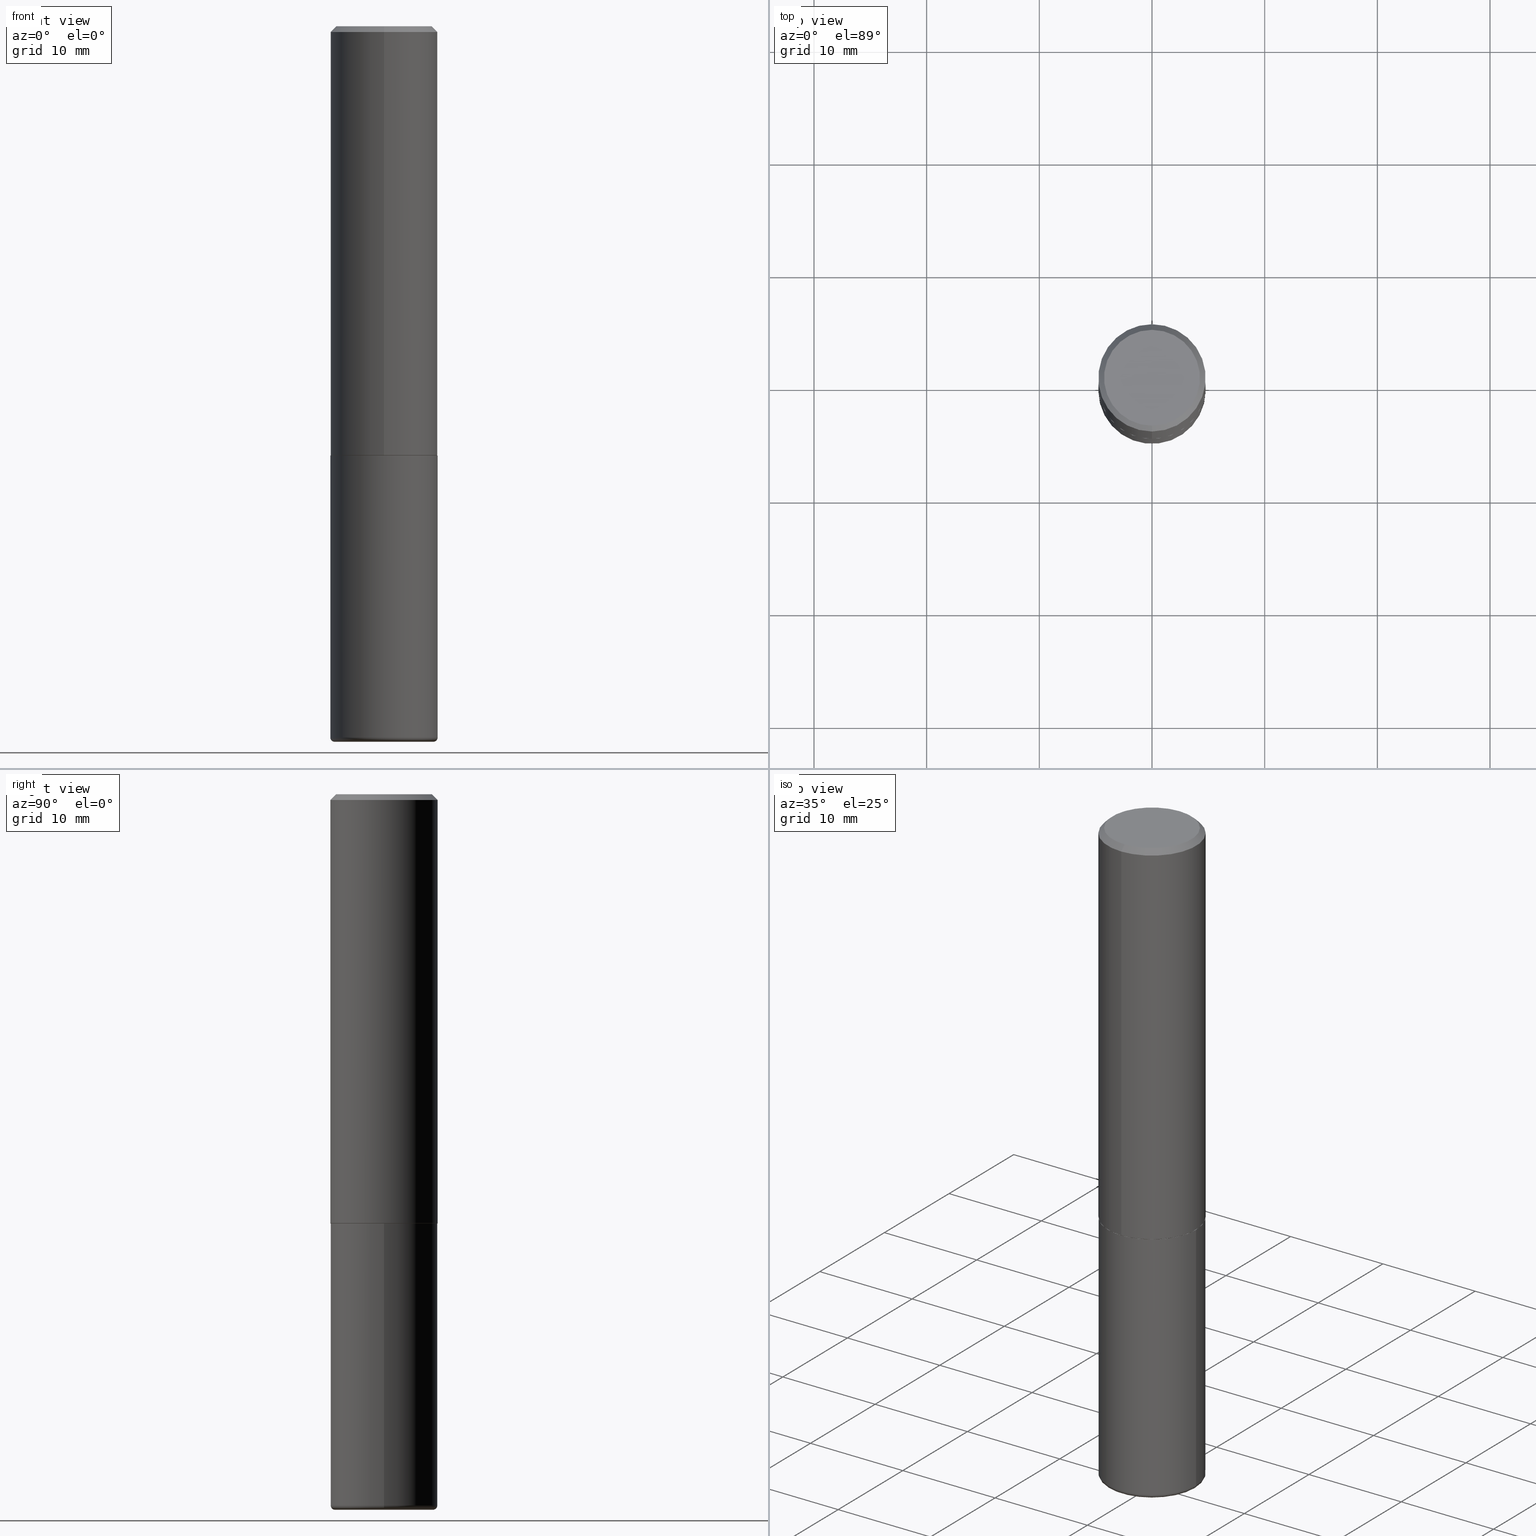
[diagram: canonical four-view strip — front | top / right | iso, engineering-drawing reading convention]
A machine part, canonical four-view strip (front | top / right | iso — engineering-drawing reading convention). The complete STEP part file that produces these views, byte-faithful:
ISO-10303-21;
HEADER;
FILE_DESCRIPTION (( 'STEP AP203' ),
    '1' );
FILE_NAME ('38328.STEP',
    '2024-03-02T23:02:50',
    ( '' ),
    ( '' ),
    'SwSTEP 2.0',
    'SolidWorks 2023',
    '' );
FILE_SCHEMA (( 'CONFIG_CONTROL_DESIGN' ));
ENDSEC;

DATA;
#1 = DIRECTION ( 'NONE',  ( -4.937700262164211199E-15, -0.7071067811864968355, 0.7071067811865981989 ) ) ;
#2 = MANIFOLD_SOLID_BREP ( 'Body-Move/Copy2[2]', #33 ) ;
#3 = CC_DESIGN_DATE_AND_TIME_ASSIGNMENT ( #76, #113, ( #35 ) ) ;
#4 = DIRECTION ( 'NONE',  ( -2.444793606782976109E-29, 3.492448262817002669E-15, 1.000000000000000000 ) ) ;
#5 = DIRECTION ( 'NONE',  ( -2.444793606782976109E-29, 3.492448262817002669E-15, 1.000000000000000000 ) ) ;
#6 = APPROVAL ( #403, 'UNSPECIFIED' ) ;
#7 = DIRECTION ( 'NONE',  ( 4.937700262164540942E-15, 0.7071067811865441310, -0.7071067811865509034 ) ) ;
#8 =( NAMED_UNIT ( * ) PLANE_ANGLE_UNIT ( ) SI_UNIT ( $, .RADIAN. ) );
#9 = ORIENTED_EDGE ( 'NONE', *, *, #224, .F. ) ;
#10 = DIRECTION ( 'NONE',  ( -6.982962677686265922E-15, -1.000000000000000000, 2.929595703661408850E-15 ) ) ;
#11 = APPLICATION_PROTOCOL_DEFINITION ( 'international standard', 'config_control_design', 1994, #191 ) ;
#12 = ORIENTED_EDGE ( 'NONE', *, *, #155, .F. ) ;
#13 = CARTESIAN_POINT ( 'NONE',  ( 6.076989983370064174E-29, -8.676331127025216680E-15, -2.484999999999999876 ) ) ;
#14 = EDGE_CURVE ( 'NONE', #252, #20, #22, .T. ) ;
#15 = ORIENTED_EDGE ( 'NONE', *, *, #258, .F. ) ;
#16 = DIRECTION ( 'NONE',  ( 5.024295867787719235E-15, 0.7071067811865017205, 0.7071067811865933139 ) ) ;
#17 = VERTEX_POINT ( 'NONE', #90 ) ;
#18 = DIRECTION ( 'NONE',  ( -6.982962677686266711E-15, -1.000000000000000000, 3.492448262817002274E-15 ) ) ;
#19 = SHAPE_DEFINITION_REPRESENTATION ( #314, #162 ) ;
#20 = VERTEX_POINT ( 'NONE', #322 ) ;
#21 = DIRECTION ( 'NONE',  ( 1.000000000000000000, -6.982962677686261977E-15, 4.883557194083111219E-29 ) ) ;
#22 = CIRCLE ( 'NONE', #401, 0.01499999999999987454 ) ;
#23 = DATE_AND_TIME ( #411, #200 ) ;
#24 = LOCAL_TIME ( 18, 2, 50.00000000000000000, #70 ) ;
#25 = DIRECTION ( 'NONE',  ( -2.445468806185136597E-29, 3.491481338843145583E-15, 1.000000000000000000 ) ) ;
#26 = APPROVAL_DATE_TIME ( #317, #266 ) ;
#27 = CARTESIAN_POINT ( 'NONE',  ( -0.1725000000000000144, -7.450644907839043165E-15, -2.484999999999999876 ) ) ;
#28 = ORIENTED_EDGE ( 'NONE', *, *, #39, .T. ) ;
#29 = ORIENTED_EDGE ( 'NONE', *, *, #180, .F. ) ;
#30 = EDGE_CURVE ( 'NONE', #252, #218, #377, .T. ) ;
#31 = VECTOR ( 'NONE', #362, 39.37007874015748143 ) ;
#32 = DIRECTION ( 'NONE',  ( -2.444793606782976109E-29, 3.492448262817002669E-15, 1.000000000000000000 ) ) ;
#33 = CLOSED_SHELL ( 'NONE', ( #93, #161, #254, #216, #202, #60, #289, #307 ) ) ;
#34 = DIRECTION ( 'NONE',  ( 2.444793606782976109E-29, -3.492448262817002669E-15, -1.000000000000000000 ) ) ;
#35 = PRODUCT_DEFINITION ( 'UNKNOWN', '', #100, #406 ) ;
#36 = PLANE ( 'NONE',  #358 ) ;
#37 = FACE_OUTER_BOUND ( 'NONE', #214, .T. ) ;
#38 = DATE_AND_TIME ( #302, #24 ) ;
#39 = EDGE_CURVE ( 'NONE', #20, #176, #335, .T. ) ;
#40 = CARTESIAN_POINT ( 'NONE',  ( -1.309305502066175600E-15, -0.1875000000000000833, 6.548340492781882223E-16 ) ) ;
#41 = COORDINATED_UNIVERSAL_TIME_OFFSET ( 5, 0, .BEHIND. ) ;
#42 = CARTESIAN_POINT ( 'NONE',  ( -0.1725000000000000144, -7.423540312698360130E-15, -2.499999999999999556 ) ) ;
#43 =( CONVERSION_BASED_UNIT ( 'INCH', #146 ) LENGTH_UNIT ( ) NAMED_UNIT ( #323 ) );
#44 = VERTEX_POINT ( 'NONE', #227 ) ;
#45 = PERSON_AND_ORGANIZATION_ROLE ( 'design_supplier' ) ;
#46 = EDGE_LOOP ( 'NONE', ( #364, #142, #59, #183 ) ) ;
#47 = CARTESIAN_POINT ( 'NONE',  ( 1.325162202192623128E-15, 0.1864999999999947533, -1.500000000000000888 ) ) ;
#48 =( GEOMETRIC_REPRESENTATION_CONTEXT ( 3 ) GLOBAL_UNCERTAINTY_ASSIGNED_CONTEXT ( ( #99 ) ) GLOBAL_UNIT_ASSIGNED_CONTEXT ( ( #43, #8, #396 ) ) REPRESENTATION_CONTEXT ( 'NONE', 'WORKASPACE' ) );
#49 = PERSON_AND_ORGANIZATION ( #156, #159 ) ;
#50 = ORIENTED_EDGE ( 'NONE', *, *, #284, .T. ) ;
#51 = DIRECTION ( 'NONE',  ( 6.982962677686265922E-15, 1.000000000000000000, -3.492448262817002669E-15 ) ) ;
#52 = ORIENTED_EDGE ( 'NONE', *, *, #224, .T. ) ;
#53 = CARTESIAN_POINT ( 'NONE',  ( 6.076989983370064174E-29, -8.676331127025216680E-15, -2.484999999999999876 ) ) ;
#54 = APPROVAL_STATUS ( 'not_yet_approved' ) ;
#55 = ORIENTED_EDGE ( 'NONE', *, *, #30, .T. ) ;
#56 = FACE_OUTER_BOUND ( 'NONE', #117, .T. ) ;
#57 = CIRCLE ( 'NONE', #393, 0.1875000000000001943 ) ;
#58 = FACE_OUTER_BOUND ( 'NONE', #187, .T. ) ;
#59 = ORIENTED_EDGE ( 'NONE', *, *, #238, .T. ) ;
#60 = ADVANCED_FACE ( 'NONE', ( #193 ), #355, .T. ) ;
#61 = ORIENTED_EDGE ( 'NONE', *, *, #125, .F. ) ;
#62 = DIRECTION ( 'NONE',  ( -2.445468806185136597E-29, 3.491481338843145583E-15, 1.000000000000000000 ) ) ;
#63 = CARTESIAN_POINT ( 'NONE',  ( 1.239475875289311907E-15, 0.1674999999999998157, -4.098141121621095221E-16 ) ) ;
#64 = VECTOR ( 'NONE', #283, 39.37007874015748143 ) ;
#65 = AXIS2_PLACEMENT_3D ( 'NONE', #106, #137, #391 ) ;
#66 = AXIS2_PLACEMENT_3D ( 'NONE', #279, #221, #313 ) ;
#67 = DIRECTION ( 'NONE',  ( 2.444793606782976109E-29, -3.492448262817002669E-15, -1.000000000000000000 ) ) ;
#68 = DIRECTION ( 'NONE',  ( -2.444793606782976109E-29, 3.492448262817002669E-15, 1.000000000000000000 ) ) ;
#69 = CC_DESIGN_PERSON_AND_ORGANIZATION_ASSIGNMENT ( #276, #80, ( #100 ) ) ;
#70 = COORDINATED_UNIVERSAL_TIME_OFFSET ( 5, 0, .BEHIND. ) ;
#71 = CARTESIAN_POINT ( 'NONE',  ( 0.1725000000000000144, -9.880892188926098319E-15, -2.484999999999999876 ) ) ;
#72 = CALENDAR_DATE ( 2024, 2, 3 ) ;
#73 = VERTEX_POINT ( 'NONE', #63 ) ;
#74 = AXIS2_PLACEMENT_3D ( 'NONE', #79, #62, #269 ) ;
#75 = DIRECTION ( 'NONE',  ( -4.851104656540957175E-15, -0.7071067811865490160, -0.7071067811865460184 ) ) ;
#76 = DATE_AND_TIME ( #72, #153 ) ;
#77 = EDGE_LOOP ( 'NONE', ( #416, #28, #326, #61 ) ) ;
#78 = CARTESIAN_POINT ( 'NONE',  ( 4.889587213565963568E-31, -6.984896525634020819E-17, -0.02000000000000004205 ) ) ;
#79 = CARTESIAN_POINT ( 'NONE',  ( 0.000000000000000000, 0.000000000000000000, 0.000000000000000000 ) ) ;
#80 = PERSON_AND_ORGANIZATION_ROLE ( 'creator' ) ;
#81 = ORIENTED_EDGE ( 'NONE', *, *, #284, .F. ) ;
#82 = EDGE_CURVE ( 'NONE', #17, #354, #101, .T. ) ;
#83 = DIRECTION ( 'NONE',  ( 1.000000000000000000, -6.982962677686265922E-15, 0.000000000000000000 ) ) ;
#84 = ORIENTED_EDGE ( 'NONE', *, *, #166, .F. ) ;
#85 = DIRECTION ( 'NONE',  ( -6.982962677686265922E-15, -1.000000000000000000, 3.492448262817002669E-15 ) ) ;
#86 = AXIS2_PLACEMENT_3D ( 'NONE', #175, #286, #51 ) ;
#87 = ORIENTED_EDGE ( 'NONE', *, *, #375, .T. ) ;
#88 = FACE_OUTER_BOUND ( 'NONE', #305, .T. ) ;
#89 = ADVANCED_FACE ( 'NONE', ( #141 ), #192, .T. ) ;
#90 = CARTESIAN_POINT ( 'NONE',  ( -1.302322539388451720E-15, -0.1865000000000051894, -1.499999999999999778 ) ) ;
#91 = AXIS2_PLACEMENT_3D ( 'NONE', #297, #68, #132 ) ;
#92 = EDGE_LOOP ( 'NONE', ( #241, #55, #126, #281 ) ) ;
#93 = ADVANCED_FACE ( 'NONE', ( #390 ), #234, .T. ) ;
#94 = COORDINATED_UNIVERSAL_TIME_OFFSET ( 5, 0, .BEHIND. ) ;
#95 = DIRECTION ( 'NONE',  ( 1.000000000000000000, -6.982962677686265922E-15, 0.000000000000000000 ) ) ;
#96 = DIRECTION ( 'NONE',  ( -6.982962677686265922E-15, -1.000000000000000000, 2.929595703661408850E-15 ) ) ;
#97 = CIRCLE ( 'NONE', #152, 0.1864999999999999714 ) ;
#98 = CARTESIAN_POINT ( 'NONE',  ( 0.000000000000000000, 0.000000000000000000, 0.000000000000000000 ) ) ;
#99 = UNCERTAINTY_MEASURE_WITH_UNIT (LENGTH_MEASURE( 1.000000000000000082E-05 ), #43, 'distance_accuracy_value', 'NONE');
#100 = PRODUCT_DEFINITION_FORMATION_WITH_SPECIFIED_SOURCE ( 'ANY', '', #376, .NOT_KNOWN. ) ;
#101 = CIRCLE ( 'NONE', #388, 0.1864999999999999714 ) ;
#102 = SECURITY_CLASSIFICATION ( '', '', #285 ) ;
#103 = DIRECTION ( 'NONE',  ( -6.982962677686265922E-15, -1.000000000000000000, 2.913971193241877611E-15 ) ) ;
#104 = APPLICATION_PROTOCOL_DEFINITION ( 'international standard', 'config_control_design', 1994, #386 ) ;
#105 = CARTESIAN_POINT ( 'NONE',  ( -1.286343374582161379E-15, -0.1875000000000000555, -0.01999999999999938979 ) ) ;
#106 = CARTESIAN_POINT ( 'NONE',  ( 3.668203209277704895E-29, -5.237222008264718177E-15, -1.500000000000000222 ) ) ;
#107 = ORIENTED_EDGE ( 'NONE', *, *, #246, .F. ) ;
#108 = CARTESIAN_POINT ( 'NONE',  ( 4.889587213565963568E-31, -6.984896525634020819E-17, -0.02000000000000004205 ) ) ;
#109 = TOROIDAL_SURFACE ( 'NONE', #402, 0.1725000000000000144, 0.01499999999999987454 ) ;
#110 = APPROVAL_STATUS ( 'not_yet_approved' ) ;
#111 = ORIENTED_EDGE ( 'NONE', *, *, #262, .T. ) ;
#112 = CARTESIAN_POINT ( 'NONE',  ( 3.667190410174465144E-29, -5.238672394225504989E-15, -1.500000000000000444 ) ) ;
#113 = DATE_TIME_ROLE ( 'creation_date' ) ;
#114 = ORIENTED_EDGE ( 'NONE', *, *, #188, .T. ) ;
#115 = DIRECTION ( 'NONE',  ( 1.000000000000000000, -6.982962677686267499E-15, 0.000000000000000000 ) ) ;
#116 = EDGE_LOOP ( 'NONE', ( #160, #303, #321, #12 ) ) ;
#117 = EDGE_LOOP ( 'NONE', ( #278, #185 ) ) ;
#118 = DIRECTION ( 'NONE',  ( -6.982962677686265922E-15, -1.000000000000000000, 2.913971193241877611E-15 ) ) ;
#119 = DIRECTION ( 'NONE',  ( -2.445468806185136597E-29, 3.491481338843145583E-15, 1.000000000000000000 ) ) ;
#120 = CARTESIAN_POINT ( 'NONE',  ( 0.1875000000000000555, -1.309305502066175205E-15, 9.142831454617382414E-30 ) ) ;
#121 = VERTEX_POINT ( 'NONE', #223 ) ;
#122 = APPROVAL_PERSON_ORGANIZATION ( #205, #150, #337 ) ;
#123 = AXIS2_PLACEMENT_3D ( 'NONE', #259, #385, #96 ) ;
#124 = CARTESIAN_POINT ( 'NONE',  ( 6.076989983370064174E-29, -8.676331127025216680E-15, -2.484999999999999876 ) ) ;
#125 = EDGE_CURVE ( 'NONE', #340, #208, #230, .T. ) ;
#126 = ORIENTED_EDGE ( 'NONE', *, *, #155, .T. ) ;
#127 = ADVANCED_FACE ( 'NONE', ( #58 ), #260, .T. ) ;
#128 = AXIS2_PLACEMENT_3D ( 'NONE', #130, #251, #231 ) ;
#129 = LINE ( 'NONE', #237, #31 ) ;
#130 = CARTESIAN_POINT ( 'NONE',  ( 3.667190410174465144E-29, -5.238672394225504989E-15, -1.500000000000000444 ) ) ;
#131 = EDGE_CURVE ( 'NONE', #354, #17, #97, .T. ) ;
#132 = DIRECTION ( 'NONE',  ( -6.982962677686266711E-15, -1.000000000000000000, 3.492448262817002274E-15 ) ) ;
#133 = AXIS2_PLACEMENT_3D ( 'NONE', #178, #145, #115 ) ;
#134 = LINE ( 'NONE', #105, #367 ) ;
#135 = MANIFOLD_SOLID_BREP ( 'Body-Move/Copy2[1]', #225 ) ;
#136 = MECHANICAL_CONTEXT ( 'NONE', #191, 'mechanical' ) ;
#137 = DIRECTION ( 'NONE',  ( -2.445468806185136597E-29, 3.491481338843145583E-15, 1.000000000000000000 ) ) ;
#138 = CARTESIAN_POINT ( 'NONE',  ( 0.000000000000000000, 0.000000000000000000, 0.000000000000000000 ) ) ;
#139 = ORIENTED_EDGE ( 'NONE', *, *, #347, .T. ) ;
#140 = FACE_OUTER_BOUND ( 'NONE', #249, .T. ) ;
#141 = FACE_OUTER_BOUND ( 'NONE', #77, .T. ) ;
#142 = ORIENTED_EDGE ( 'NONE', *, *, #131, .T. ) ;
#143 = TOROIDAL_SURFACE ( 'NONE', #345, 0.1725000000000000144, 0.01499999999999987454 ) ;
#144 = AXIS2_PLACEMENT_3D ( 'NONE', #98, #4, #360 ) ;
#145 = DIRECTION ( 'NONE',  ( -2.445468806185136597E-29, 3.491481338843145583E-15, 1.000000000000000000 ) ) ;
#146 = LENGTH_MEASURE_WITH_UNIT ( LENGTH_MEASURE( 0.02539999999999999897 ), #194 );
#147 = ORIENTED_EDGE ( 'NONE', *, *, #180, .T. ) ;
#148 = PLANE ( 'NONE',  #66 ) ;
#149 = ORIENTED_EDGE ( 'NONE', *, *, #232, .F. ) ;
#150 = APPROVAL ( #110, 'UNSPECIFIED' ) ;
#151 = FACE_OUTER_BOUND ( 'NONE', #92, .T. ) ;
#152 = AXIS2_PLACEMENT_3D ( 'NONE', #294, #418, #10 ) ;
#153 = LOCAL_TIME ( 18, 2, 50.00000000000000000, #248 ) ;
#154 = VERTEX_POINT ( 'NONE', #210 ) ;
#155 = EDGE_CURVE ( 'NONE', #218, #176, #186, .T. ) ;
#156 = PERSON ( 'UNSPECIFIED', 'UNSPECIFIED', 'UNSPECIFIED', ('UNSPECIFIED'), ('UNSPECIFIED'), ('UNSPECIFIED') ) ;
#157 = ORIENTED_EDGE ( 'NONE', *, *, #298, .F. ) ;
#158 = CIRCLE ( 'NONE', #261, 0.1874999999999999722 ) ;
#159 = ORGANIZATION ( 'UNSPECIFIED', 'UNSPECIFIED', '' ) ;
#160 = ORIENTED_EDGE ( 'NONE', *, *, #298, .T. ) ;
#161 = ADVANCED_FACE ( 'NONE', ( #203 ), #392, .T. ) ;
#162 = ADVANCED_BREP_SHAPE_REPRESENTATION ( '38328', ( #135, #2, #380 ), #48 ) ;
#163 = VECTOR ( 'NONE', #5, 39.37007874015748143 ) ;
#164 = LOCAL_TIME ( 18, 2, 50.00000000000000000, #41 ) ;
#165 = CARTESIAN_POINT ( 'NONE',  ( 1.309305502066175205E-15, 0.1874999999999999167, -0.02000000000000069431 ) ) ;
#166 = EDGE_CURVE ( 'NONE', #73, #121, #343, .T. ) ;
#167 = CARTESIAN_POINT ( 'NONE',  ( 0.000000000000000000, 0.000000000000000000, 0.000000000000000000 ) ) ;
#168 = DIRECTION ( 'NONE',  ( 6.982962677686266711E-15, 1.000000000000000000, -3.483106191921935949E-15 ) ) ;
#169 = APPROVAL_DATE_TIME ( #38, #6 ) ;
#170 = VECTOR ( 'NONE', #7, 39.37007874015748143 ) ;
#171 = CARTESIAN_POINT ( 'NONE',  ( -1.302322539388451720E-15, -0.1865000000000051894, -1.499999999999999778 ) ) ;
#172 = ORIENTED_EDGE ( 'NONE', *, *, #398, .F. ) ;
#173 = CARTESIAN_POINT ( 'NONE',  ( 0.1874999999999999722, -9.985636629091391688E-15, -2.484999999999999876 ) ) ;
#174 = EDGE_LOOP ( 'NONE', ( #172, #114, #50, #15 ) ) ;
#175 = CARTESIAN_POINT ( 'NONE',  ( 1.169646248512448412E-15, 0.1674999999999998157, -4.973995980919783120E-16 ) ) ;
#176 = VERTEX_POINT ( 'NONE', #173 ) ;
#177 = CIRCLE ( 'NONE', #133, 0.1725000000000000144 ) ;
#178 = CARTESIAN_POINT ( 'NONE',  ( 6.113672015462840371E-29, -8.728703347107863365E-15, -2.499999999999999556 ) ) ;
#179 = CC_DESIGN_APPROVAL ( #150, ( #100 ) ) ;
#180 = EDGE_CURVE ( 'NONE', #44, #348, #158, .T. ) ;
#181 = ORIENTED_EDGE ( 'NONE', *, *, #316, .F. ) ;
#182 = DIRECTION ( 'NONE',  ( -2.445468806185136597E-29, 3.491481338843145583E-15, 1.000000000000000000 ) ) ;
#183 = ORIENTED_EDGE ( 'NONE', *, *, #347, .F. ) ;
#184 = DIRECTION ( 'NONE',  ( -2.445468806185136597E-29, 3.491481338843145583E-15, 1.000000000000000000 ) ) ;
#185 = ORIENTED_EDGE ( 'NONE', *, *, #398, .T. ) ;
#186 = CIRCLE ( 'NONE', #207, 0.01499999999999987454 ) ;
#187 = EDGE_LOOP ( 'NONE', ( #257, #87, #369, #181 ) ) ;
#188 = EDGE_CURVE ( 'NONE', #121, #348, #134, .T. ) ;
#189 = PERSON_AND_ORGANIZATION ( #156, #159 ) ;
#190 = ORIENTED_EDGE ( 'NONE', *, *, #125, .T. ) ;
#191 = APPLICATION_CONTEXT ( 'configuration controlled 3d designs of mechanical parts and assemblies' ) ;
#192 = CYLINDRICAL_SURFACE ( 'NONE', #74, 0.1875000000000000555 ) ;
#193 = FACE_OUTER_BOUND ( 'NONE', #46, .T. ) ;
#194 =( LENGTH_UNIT ( ) NAMED_UNIT ( * ) SI_UNIT ( $, .METRE. ) );
#195 = AXIS2_PLACEMENT_3D ( 'NONE', #124, #119, #95 ) ;
#196 = CARTESIAN_POINT ( 'NONE',  ( 3.667190410174465144E-29, -5.238672394225504989E-15, -1.500000000000000444 ) ) ;
#197 = PRODUCT_RELATED_PRODUCT_CATEGORY ( 'detail', '', ( #376 ) ) ;
#198 = CC_DESIGN_APPROVAL ( #6, ( #35 ) ) ;
#199 = AXIS2_PLACEMENT_3D ( 'NONE', #108, #357, #243 ) ;
#200 = LOCAL_TIME ( 18, 2, 50.00000000000000000, #226 ) ;
#201 = FACE_OUTER_BOUND ( 'NONE', #414, .T. ) ;
#202 = ADVANCED_FACE ( 'NONE', ( #37 ), #334, .T. ) ;
#203 = FACE_OUTER_BOUND ( 'NONE', #404, .T. ) ;
#204 = LINE ( 'NONE', #171, #256 ) ;
#205 = PERSON_AND_ORGANIZATION ( #156, #159 ) ;
#206 = CC_DESIGN_DATE_AND_TIME_ASSIGNMENT ( #23, #352, ( #102 ) ) ;
#207 = AXIS2_PLACEMENT_3D ( 'NONE', #71, #239, #330 ) ;
#208 = VERTEX_POINT ( 'NONE', #395 ) ;
#209 = CIRCLE ( 'NONE', #242, 0.1674999999999998157 ) ;
#210 = CARTESIAN_POINT ( 'NONE',  ( 1.332267629550206781E-15, 0.1874999999999949485, -1.499000000000000554 ) ) ;
#211 = CALENDAR_DATE ( 2024, 2, 3 ) ;
#212 = LINE ( 'NONE', #120, #64 ) ;
#213 = PERSON_AND_ORGANIZATION ( #156, #159 ) ;
#214 = EDGE_LOOP ( 'NONE', ( #149, #139, #52, #29 ) ) ;
#215 = CARTESIAN_POINT ( 'NONE',  ( -1.286343374582161379E-15, -0.1875000000000000555, -0.01999999999999938979 ) ) ;
#216 = ADVANCED_FACE ( 'NONE', ( #264 ), #250, .T. ) ;
#217 = PERSON_AND_ORGANIZATION_ROLE ( 'design_owner' ) ;
#218 = VERTEX_POINT ( 'NONE', #299 ) ;
#219 = AXIS2_PLACEMENT_3D ( 'NONE', #328, #34, #397 ) ;
#220 = CARTESIAN_POINT ( 'NONE',  ( -1.309305502066139509E-15, -0.1875000000000054123, -1.498999999999999444 ) ) ;
#221 = DIRECTION ( 'NONE',  ( 2.438088387897960049E-29, -3.491481338843145188E-15, -1.000000000000000000 ) ) ;
#222 = CARTESIAN_POINT ( 'NONE',  ( 1.328714915871423829E-15, 0.1864999999999947533, -1.500000000000000888 ) ) ;
#223 = CARTESIAN_POINT ( 'NONE',  ( -1.217738394604445850E-15, -0.1674999999999998157, 7.601560558815852241E-16 ) ) ;
#224 = EDGE_CURVE ( 'NONE', #312, #348, #296, .T. ) ;
#225 = CLOSED_SHELL ( 'NONE', ( #127, #356, #387, #89, #408, #277 ) ) ;
#226 = COORDINATED_UNIVERSAL_TIME_OFFSET ( 5, 0, .BEHIND. ) ;
#227 = CARTESIAN_POINT ( 'NONE',  ( 1.309305502066175205E-15, 0.1874999999999999167, -0.02000000000000069431 ) ) ;
#228 = CC_DESIGN_PERSON_AND_ORGANIZATION_ASSIGNMENT ( #368, #363, ( #35 ) ) ;
#229 = DIRECTION ( 'NONE',  ( 1.000000000000000000, -6.982962677686267499E-15, 0.000000000000000000 ) ) ;
#230 = CIRCLE ( 'NONE', #272, 0.1875000000000000278 ) ;
#231 = DIRECTION ( 'NONE',  ( -6.982962677686265922E-15, -1.000000000000000000, 2.929595703661408850E-15 ) ) ;
#232 = EDGE_CURVE ( 'NONE', #154, #44, #129, .T. ) ;
#233 = PLANE ( 'NONE',  #412 ) ;
#234 = CONICAL_SURFACE ( 'NONE', #128, 0.1864999999999999714, 0.7853981633973801113 ) ;
#235 = FACE_OUTER_BOUND ( 'NONE', #174, .T. ) ;
#236 = DIRECTION ( 'NONE',  ( -2.445468806185136597E-29, 3.491481338843145583E-15, 1.000000000000000000 ) ) ;
#237 = CARTESIAN_POINT ( 'NONE',  ( 1.332267629550188243E-15, 0.1875000000000000833, -6.548340492781882223E-16 ) ) ;
#238 = EDGE_CURVE ( 'NONE', #17, #312, #204, .T. ) ;
#239 = DIRECTION ( 'NONE',  ( -6.982962677686266711E-15, -1.000000000000000000, 3.491481338843145583E-15 ) ) ;
#240 = PERSON_AND_ORGANIZATION ( #156, #159 ) ;
#241 = ORIENTED_EDGE ( 'NONE', *, *, #14, .F. ) ;
#242 = AXIS2_PLACEMENT_3D ( 'NONE', #409, #374, #18 ) ;
#243 = DIRECTION ( 'NONE',  ( -6.982962677686266711E-15, -1.000000000000000000, 3.483106191921935949E-15 ) ) ;
#244 = DATE_AND_TIME ( #211, #164 ) ;
#245 = ORIENTED_EDGE ( 'NONE', *, *, #232, .T. ) ;
#246 = EDGE_CURVE ( 'NONE', #312, #154, #57, .T. ) ;
#247 = DIRECTION ( 'NONE',  ( -2.444793606782975829E-29, 3.492448262817002669E-15, 1.000000000000000000 ) ) ;
#248 = COORDINATED_UNIVERSAL_TIME_OFFSET ( 5, 0, .BEHIND. ) ;
#249 = EDGE_LOOP ( 'NONE', ( #157, #292 ) ) ;
#250 = CONICAL_SURFACE ( 'NONE', #265, 0.1874999999999999722, 0.7853981633974469467 ) ;
#251 = DIRECTION ( 'NONE',  ( -2.444793606782976109E-29, 3.492448262817002669E-15, 1.000000000000000000 ) ) ;
#252 = VERTEX_POINT ( 'NONE', #42 ) ;
#253 = DIRECTION ( 'NONE',  ( -2.445468806185136597E-29, 3.491481338843145583E-15, 1.000000000000000000 ) ) ;
#254 = ADVANCED_FACE ( 'NONE', ( #235 ), #329, .T. ) ;
#255 = AXIS2_PLACEMENT_3D ( 'NONE', #346, #341, #118 ) ;
#256 = VECTOR ( 'NONE', #1, 39.37007874015748143 ) ;
#257 = ORIENTED_EDGE ( 'NONE', *, *, #331, .T. ) ;
#258 = EDGE_CURVE ( 'NONE', #73, #44, #301, .T. ) ;
#259 = CARTESIAN_POINT ( 'NONE',  ( 3.667190410174465144E-29, -5.238672394225504989E-15, -1.500000000000000444 ) ) ;
#260 = CYLINDRICAL_SURFACE ( 'NONE', #309, 0.1875000000000000555 ) ;
#261 = AXIS2_PLACEMENT_3D ( 'NONE', #78, #338, #267 ) ;
#262 = EDGE_CURVE ( 'NONE', #208, #340, #295, .T. ) ;
#263 = CARTESIAN_POINT ( 'NONE',  ( 3.664745616567681106E-29, -5.235179945962687995E-15, -1.499000000000000110 ) ) ;
#264 = FACE_OUTER_BOUND ( 'NONE', #318, .T. ) ;
#265 = AXIS2_PLACEMENT_3D ( 'NONE', #332, #67, #168 ) ;
#266 = APPROVAL ( #54, 'UNSPECIFIED' ) ;
#267 = DIRECTION ( 'NONE',  ( -6.982962677686266711E-15, -1.000000000000000000, 3.483106191921935949E-15 ) ) ;
#268 = DIRECTION ( 'NONE',  ( -6.982962677686266711E-15, -1.000000000000000000, 3.492448262817002274E-15 ) ) ;
#269 = DIRECTION ( 'NONE',  ( 1.000000000000000000, -6.982962677686265922E-15, 4.876176775795935793E-29 ) ) ;
#270 = CARTESIAN_POINT ( 'NONE',  ( 1.164306116933810780E-28, -8.103033654723158320E-16, -2.500000000000000000 ) ) ;
#271 = DIRECTION ( 'NONE',  ( 1.000000000000000000, 0.000000000000000000, 0.000000000000000000 ) ) ;
#272 = AXIS2_PLACEMENT_3D ( 'NONE', #389, #236, #339 ) ;
#273 = ORIENTED_EDGE ( 'NONE', *, *, #381, .T. ) ;
#274 = VECTOR ( 'NONE', #373, 39.37007874015748143 ) ;
#275 = DIRECTION ( 'NONE',  ( 1.000000000000000000, -6.982962677686261977E-15, 4.883557194083111219E-29 ) ) ;
#276 = PERSON_AND_ORGANIZATION ( #156, #159 ) ;
#277 = ADVANCED_FACE ( 'NONE', ( #140 ), #233, .T. ) ;
#278 = ORIENTED_EDGE ( 'NONE', *, *, #166, .T. ) ;
#279 = CARTESIAN_POINT ( 'NONE',  ( 3.668203209277704895E-29, -5.237222008264718177E-15, -1.500000000000000222 ) ) ;
#280 = CALENDAR_DATE ( 2024, 2, 3 ) ;
#281 = ORIENTED_EDGE ( 'NONE', *, *, #39, .F. ) ;
#282 = ORIENTED_EDGE ( 'NONE', *, *, #188, .F. ) ;
#283 = DIRECTION ( 'NONE',  ( -2.445468806185136877E-29, 3.491481338843145188E-15, 1.000000000000000000 ) ) ;
#284 = EDGE_CURVE ( 'NONE', #348, #44, #382, .T. ) ;
#285 = SECURITY_CLASSIFICATION_LEVEL ( 'unclassified' ) ;
#286 = DIRECTION ( 'NONE',  ( 2.444793606782975829E-29, -3.492448262817002669E-15, -1.000000000000000000 ) ) ;
#287 = DIRECTION ( 'NONE',  ( -1.000000000000000000, 7.105427357600985293E-15, 0.000000000000000000 ) ) ;
#288 = APPROVAL_ROLE ( '' ) ;
#289 = ADVANCED_FACE ( 'NONE', ( #201 ), #36, .F. ) ;
#290 = CC_DESIGN_APPROVAL ( #266, ( #102 ) ) ;
#291 = LOCAL_TIME ( 18, 2, 50.00000000000000000, #94 ) ;
#292 = ORIENTED_EDGE ( 'NONE', *, *, #30, .F. ) ;
#293 = DIRECTION ( 'NONE',  ( 1.000000000000000000, -6.982962677686265922E-15, 4.876176775795935793E-29 ) ) ;
#294 = CARTESIAN_POINT ( 'NONE',  ( 3.667190410174465144E-29, -5.238672394225504989E-15, -1.500000000000000444 ) ) ;
#295 = CIRCLE ( 'NONE', #65, 0.1875000000000000278 ) ;
#296 = LINE ( 'NONE', #40, #163 ) ;
#297 = CARTESIAN_POINT ( 'NONE',  ( -4.282568720966478871E-45, 6.117755563675076877E-31, 1.751709718597379003E-16 ) ) ;
#298 = EDGE_CURVE ( 'NONE', #218, #252, #177, .T. ) ;
#299 = CARTESIAN_POINT ( 'NONE',  ( 0.1725000000000000144, -9.933264409008743426E-15, -2.499999999999999556 ) ) ;
#300 = CIRCLE ( 'NONE', #383, 0.1875000000000000555 ) ;
#301 = LINE ( 'NONE', #165, #170 ) ;
#302 = CALENDAR_DATE ( 2024, 2, 3 ) ;
#303 = ORIENTED_EDGE ( 'NONE', *, *, #14, .T. ) ;
#304 = DIRECTION ( 'NONE',  ( -2.444793606782976109E-29, 3.492448262817002669E-15, 1.000000000000000000 ) ) ;
#305 = EDGE_LOOP ( 'NONE', ( #111, #190 ) ) ;
#306 = FACE_OUTER_BOUND ( 'NONE', #116, .T. ) ;
#307 = ADVANCED_FACE ( 'NONE', ( #56 ), #311, .F. ) ;
#308 = VECTOR ( 'NONE', #16, 39.37007874015748143 ) ;
#309 = AXIS2_PLACEMENT_3D ( 'NONE', #365, #399, #293 ) ;
#310 = APPROVAL_PERSON_ORGANIZATION ( #320, #266, #288 ) ;
#311 = PLANE ( 'NONE',  #86 ) ;
#312 = VERTEX_POINT ( 'NONE', #220 ) ;
#313 = DIRECTION ( 'NONE',  ( -1.000000000000000000, 6.982962677686265922E-15, -4.876176775795935793E-29 ) ) ;
#314 = PRODUCT_DEFINITION_SHAPE ( 'NONE', 'NONE',  #35 ) ;
#315 = ORIENTED_EDGE ( 'NONE', *, *, #246, .T. ) ;
#316 = EDGE_CURVE ( 'NONE', #176, #208, #212, .T. ) ;
#317 = DATE_AND_TIME ( #280, #291 ) ;
#318 = EDGE_LOOP ( 'NONE', ( #282, #84, #344, #147 ) ) ;
#319 = AXIS2_PLACEMENT_3D ( 'NONE', #415, #25, #229 ) ;
#320 = PERSON_AND_ORGANIZATION ( #156, #159 ) ;
#321 = ORIENTED_EDGE ( 'NONE', *, *, #331, .F. ) ;
#322 = CARTESIAN_POINT ( 'NONE',  ( -0.1874999999999999722, -7.344063497475028832E-15, -2.484999999999999876 ) ) ;
#323 = DIMENSIONAL_EXPONENTS ( 1.000000000000000000, 0.000000000000000000, 0.000000000000000000, 0.000000000000000000, 0.000000000000000000, 0.000000000000000000, 0.000000000000000000 ) ;
#324 = PERSON_AND_ORGANIZATION_ROLE ( 'classification_officer' ) ;
#325 = AXIS2_PLACEMENT_3D ( 'NONE', #167, #370, #268 ) ;
#326 = ORIENTED_EDGE ( 'NONE', *, *, #316, .T. ) ;
#327 = CC_DESIGN_PERSON_AND_ORGANIZATION_ASSIGNMENT ( #240, #217, ( #376 ) ) ;
#328 = CARTESIAN_POINT ( 'NONE',  ( 4.889587213565963568E-31, -6.984896525634020819E-17, -0.02000000000000004205 ) ) ;
#329 = CONICAL_SURFACE ( 'NONE', #219, 0.1874999999999999722, 0.7853981633974469467 ) ;
#330 = DIRECTION ( 'NONE',  ( 1.000000000000000000, -6.982962677686326664E-15, 0.000000000000000000 ) ) ;
#331 = EDGE_CURVE ( 'NONE', #176, #20, #300, .T. ) ;
#332 = CARTESIAN_POINT ( 'NONE',  ( 4.889587213565963568E-31, -6.984896525634020819E-17, -0.02000000000000004205 ) ) ;
#333 = DIRECTION ( 'NONE',  ( 0.000000000000000000, 0.000000000000000000, 1.000000000000000000 ) ) ;
#334 = CYLINDRICAL_SURFACE ( 'NONE', #325, 0.1875000000000000833 ) ;
#335 = CIRCLE ( 'NONE', #195, 0.1875000000000000555 ) ;
#336 = CIRCLE ( 'NONE', #255, 0.1875000000000001943 ) ;
#337 = APPROVAL_ROLE ( '' ) ;
#338 = DIRECTION ( 'NONE',  ( -2.444793606782976109E-29, 3.492448262817002669E-15, 1.000000000000000000 ) ) ;
#339 = DIRECTION ( 'NONE',  ( 1.000000000000000000, -6.982962677686266711E-15, 0.000000000000000000 ) ) ;
#340 = VERTEX_POINT ( 'NONE', #413 ) ;
#341 = DIRECTION ( 'NONE',  ( -2.444793606782976109E-29, 3.492448262817002669E-15, 1.000000000000000000 ) ) ;
#342 = LINE ( 'NONE', #47, #308 ) ;
#343 = CIRCLE ( 'NONE', #91, 0.1674999999999998157 ) ;
#344 = ORIENTED_EDGE ( 'NONE', *, *, #258, .T. ) ;
#345 = AXIS2_PLACEMENT_3D ( 'NONE', #13, #253, #275 ) ;
#346 = CARTESIAN_POINT ( 'NONE',  ( 3.664745616567681106E-29, -5.235179945962687995E-15, -1.499000000000000110 ) ) ;
#347 = EDGE_CURVE ( 'NONE', #154, #312, #336, .T. ) ;
#348 = VERTEX_POINT ( 'NONE', #215 ) ;
#349 = ORIENTED_EDGE ( 'NONE', *, *, #82, .F. ) ;
#350 = CARTESIAN_POINT ( 'NONE',  ( -0.1875000000000000555, 1.332267629550188243E-15, -9.223003294227950793E-30 ) ) ;
#351 = APPROVAL_PERSON_ORGANIZATION ( #49, #6, #361 ) ;
#352 = DATE_TIME_ROLE ( 'classification_date' ) ;
#353 = CC_DESIGN_PERSON_AND_ORGANIZATION_ASSIGNMENT ( #189, #324, ( #102 ) ) ;
#354 = VERTEX_POINT ( 'NONE', #222 ) ;
#355 = CONICAL_SURFACE ( 'NONE', #123, 0.1864999999999999714, 0.7853981633973801113 ) ;
#356 = ADVANCED_FACE ( 'NONE', ( #306 ), #143, .T. ) ;
#357 = DIRECTION ( 'NONE',  ( -2.444793606782976109E-29, 3.492448262817002669E-15, 1.000000000000000000 ) ) ;
#358 = AXIS2_PLACEMENT_3D ( 'NONE', #112, #247, #85 ) ;
#359 = DIRECTION ( 'NONE',  ( -6.982962677686265922E-15, -1.000000000000000000, 2.929595703661408850E-15 ) ) ;
#360 = DIRECTION ( 'NONE',  ( -6.982962677686266711E-15, -1.000000000000000000, 3.492448262817002274E-15 ) ) ;
#361 = APPROVAL_ROLE ( '' ) ;
#362 = DIRECTION ( 'NONE',  ( -2.444793606782976109E-29, 3.492448262817002669E-15, 1.000000000000000000 ) ) ;
#363 = PERSON_AND_ORGANIZATION_ROLE ( 'creator' ) ;
#364 = ORIENTED_EDGE ( 'NONE', *, *, #381, .F. ) ;
#365 = CARTESIAN_POINT ( 'NONE',  ( 0.000000000000000000, 0.000000000000000000, 0.000000000000000000 ) ) ;
#366 = DIRECTION ( 'NONE',  ( 2.438088387897960049E-29, -3.491481338843145188E-15, -1.000000000000000000 ) ) ;
#367 = VECTOR ( 'NONE', #75, 39.37007874015748143 ) ;
#368 = PERSON_AND_ORGANIZATION ( #156, #159 ) ;
#369 = ORIENTED_EDGE ( 'NONE', *, *, #262, .F. ) ;
#370 = DIRECTION ( 'NONE',  ( -2.444793606782976109E-29, 3.492448262817002669E-15, 1.000000000000000000 ) ) ;
#371 = APPROVAL_DATE_TIME ( #244, #150 ) ;
#372 = ORIENTED_EDGE ( 'NONE', *, *, #238, .F. ) ;
#373 = DIRECTION ( 'NONE',  ( -2.445468806185136877E-29, 3.491481338843145188E-15, 1.000000000000000000 ) ) ;
#374 = DIRECTION ( 'NONE',  ( -2.444793606782976109E-29, 3.492448262817002669E-15, 1.000000000000000000 ) ) ;
#375 = EDGE_CURVE ( 'NONE', #20, #340, #405, .T. ) ;
#376 = PRODUCT ( '38328', '38328', '', ( #136 ) ) ;
#377 = CIRCLE ( 'NONE', #319, 0.1725000000000000144 ) ;
#378 = CARTESIAN_POINT ( 'NONE',  ( 6.076989983370064174E-29, -8.676331127025216680E-15, -2.484999999999999876 ) ) ;
#379 = ORIENTED_EDGE ( 'NONE', *, *, #131, .F. ) ;
#380 = AXIS2_PLACEMENT_3D ( 'NONE', #138, #333, #271 ) ;
#381 = EDGE_CURVE ( 'NONE', #354, #154, #342, .T. ) ;
#382 = CIRCLE ( 'NONE', #199, 0.1874999999999999722 ) ;
#383 = AXIS2_PLACEMENT_3D ( 'NONE', #378, #182, #83 ) ;
#384 = DIRECTION ( 'NONE',  ( 7.105427357601001859E-15, 1.000000000000000000, -3.491481338843145583E-15 ) ) ;
#385 = DIRECTION ( 'NONE',  ( -2.444793606782976109E-29, 3.492448262817002669E-15, 1.000000000000000000 ) ) ;
#386 = APPLICATION_CONTEXT ( 'configuration controlled 3d designs of mechanical parts and assemblies' ) ;
#387 = ADVANCED_FACE ( 'NONE', ( #88 ), #148, .F. ) ;
#388 = AXIS2_PLACEMENT_3D ( 'NONE', #196, #32, #359 ) ;
#389 = CARTESIAN_POINT ( 'NONE',  ( 3.668203209277704895E-29, -5.237222008264718177E-15, -1.500000000000000222 ) ) ;
#390 = FACE_OUTER_BOUND ( 'NONE', #410, .T. ) ;
#391 = DIRECTION ( 'NONE',  ( 1.000000000000000000, -6.982962677686266711E-15, 0.000000000000000000 ) ) ;
#392 = CYLINDRICAL_SURFACE ( 'NONE', #144, 0.1875000000000000833 ) ;
#393 = AXIS2_PLACEMENT_3D ( 'NONE', #263, #304, #103 ) ;
#394 = CC_DESIGN_SECURITY_CLASSIFICATION ( #102, ( #100 ) ) ;
#395 = CARTESIAN_POINT ( 'NONE',  ( 0.1875000000000000278, -6.546527510330893974E-15, -1.500000000000000222 ) ) ;
#396 =( NAMED_UNIT ( * ) SI_UNIT ( $, .STERADIAN. ) SOLID_ANGLE_UNIT ( ) );
#397 = DIRECTION ( 'NONE',  ( 6.982962677686266711E-15, 1.000000000000000000, -3.483106191921935949E-15 ) ) ;
#398 = EDGE_CURVE ( 'NONE', #121, #73, #209, .T. ) ;
#399 = DIRECTION ( 'NONE',  ( -2.445468806185136597E-29, 3.491481338843145583E-15, 1.000000000000000000 ) ) ;
#400 = DIRECTION ( 'NONE',  ( -1.000000000000000000, 6.982962677686265922E-15, -4.876176775795935793E-29 ) ) ;
#401 = AXIS2_PLACEMENT_3D ( 'NONE', #27, #384, #287 ) ;
#402 = AXIS2_PLACEMENT_3D ( 'NONE', #53, #184, #21 ) ;
#403 = APPROVAL_STATUS ( 'not_yet_approved' ) ;
#404 = EDGE_LOOP ( 'NONE', ( #315, #245, #81, #9 ) ) ;
#405 = LINE ( 'NONE', #350, #274 ) ;
#406 = DESIGN_CONTEXT ( 'detailed design', #386, 'design' ) ;
#407 = ORIENTED_EDGE ( 'NONE', *, *, #82, .T. ) ;
#408 = ADVANCED_FACE ( 'NONE', ( #151 ), #109, .T. ) ;
#409 = CARTESIAN_POINT ( 'NONE',  ( -4.282568720966478871E-45, 6.117755563675076877E-31, 1.751709718597379003E-16 ) ) ;
#410 = EDGE_LOOP ( 'NONE', ( #407, #273, #107, #372 ) ) ;
#411 = CALENDAR_DATE ( 2024, 2, 3 ) ;
#412 = AXIS2_PLACEMENT_3D ( 'NONE', #270, #366, #400 ) ;
#413 = CARTESIAN_POINT ( 'NONE',  ( -0.1875000000000000278, -5.624508938094779185E-15, -1.500000000000000222 ) ) ;
#414 = EDGE_LOOP ( 'NONE', ( #349, #379 ) ) ;
#415 = CARTESIAN_POINT ( 'NONE',  ( 6.113672015462840371E-29, -8.728703347107863365E-15, -2.499999999999999556 ) ) ;
#416 = ORIENTED_EDGE ( 'NONE', *, *, #375, .F. ) ;
#417 = CC_DESIGN_PERSON_AND_ORGANIZATION_ASSIGNMENT ( #213, #45, ( #100 ) ) ;
#418 = DIRECTION ( 'NONE',  ( -2.444793606782976109E-29, 3.492448262817002669E-15, 1.000000000000000000 ) ) ;
ENDSEC;
END-ISO-10303-21;
